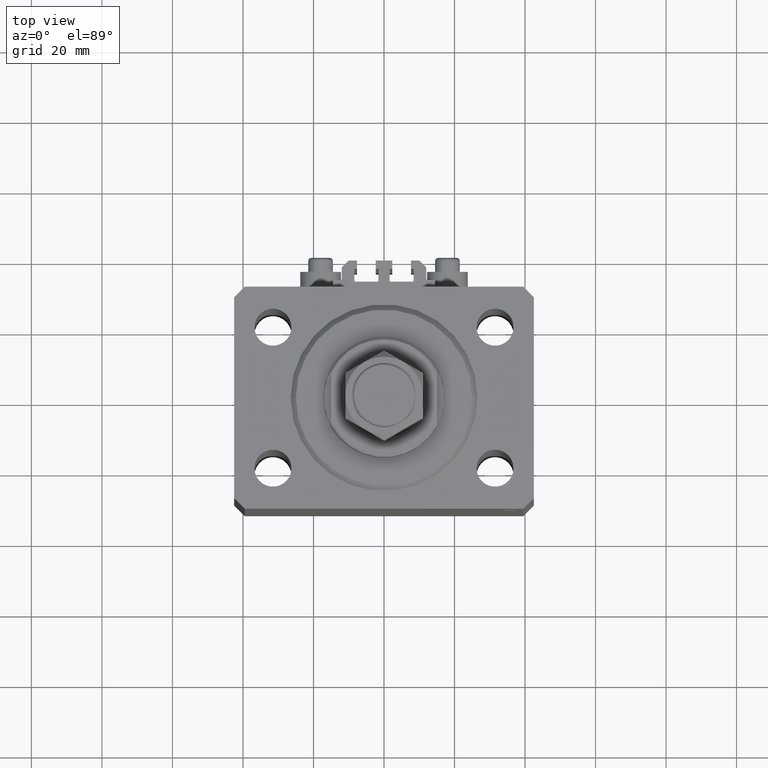
[diagram: clean part render]
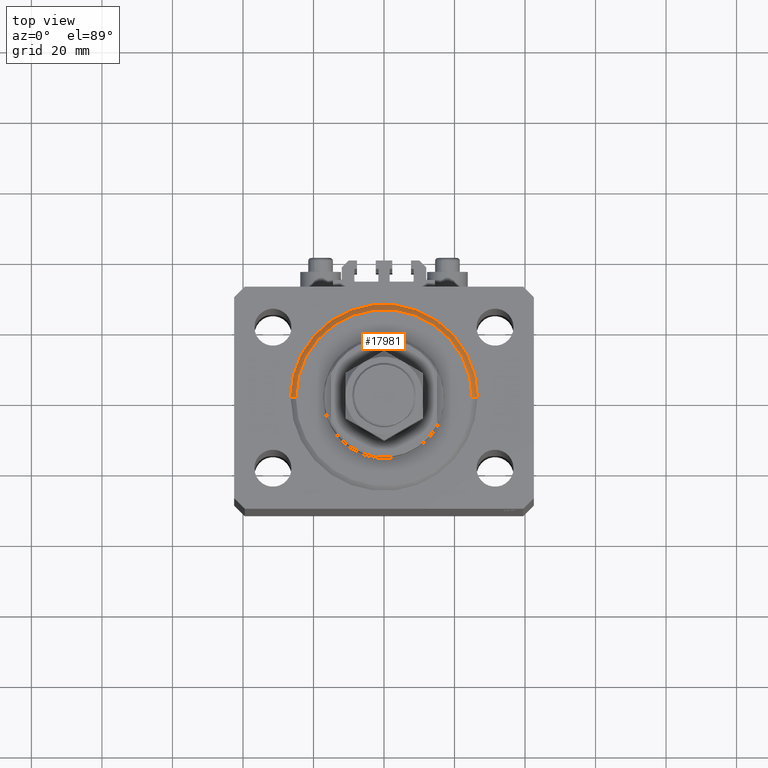
[diagram: same view with one face highlighted and labeled with its STEP entity id]
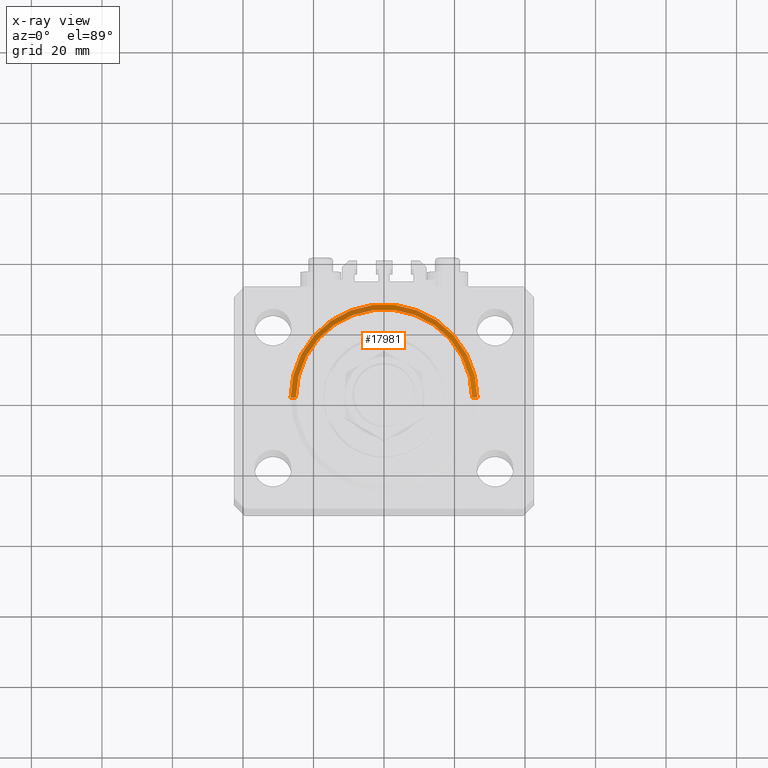
[diagram: x-ray of the same camera — body ghosted, the highlighted face saturated]
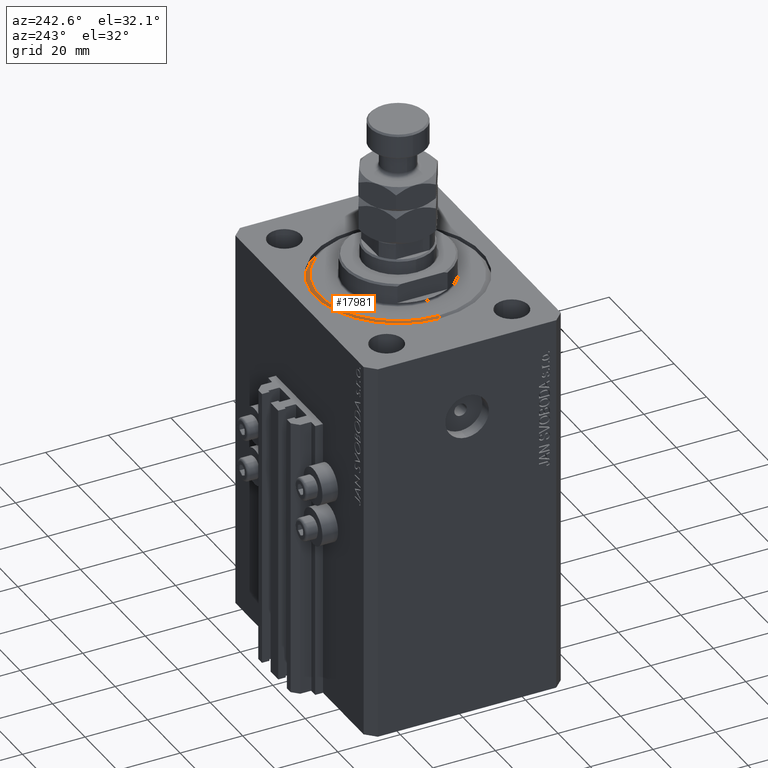
[diagram: same view with one face highlighted and labeled with its STEP entity id]
A machine part, top view. The second image highlights one B-rep face of the part: STEP entity #17981.
The next image is the same camera in x-ray: the body ghosted, the highlighted face saturated — about 0% of this face is hidden behind the body in this view.
A second angle (auxiliary view) of the same face is appended — the face is thin or edge-on in the first view.
In plain terms, the highlighted conical surface has half-angle 45 deg.
Its self-contained STEP definition (entity closure, byte-faithful):
#779 = CARTESIAN_POINT ( 'NONE',  ( -26.50000000000000355, 3.245314017740486554E-15, 1.500000000000018652 ) ) ;
#2025 = LINE ( 'NONE', #43405, #22865 ) ;
#2529 = EDGE_CURVE ( 'NONE', #45992, #48067, #36577, .T. ) ;
#5304 = VERTEX_POINT ( 'NONE', #16813 ) ;
#5512 = VERTEX_POINT ( 'NONE', #18758 ) ;
#5896 = CARTESIAN_POINT ( 'NONE',  ( 0.000000000000000000, 0.000000000000000000, 1.500000000000018652 ) ) ;
#6635 = DIRECTION ( 'NONE',  ( 1.000000000000000000, 0.000000000000000000, 0.000000000000000000 ) ) ;
#11686 = CARTESIAN_POINT ( 'NONE',  ( 26.50000000000000355, 3.245314017740486554E-15, 1.500000000000018652 ) ) ;
#13610 = ORIENTED_EDGE ( 'NONE', *, *, #2529, .F. ) ;
#15060 = ORIENTED_EDGE ( 'NONE', *, *, #48622, .F. ) ;
#15214 = AXIS2_PLACEMENT_3D ( 'NONE', #45427, #33785, #30077 ) ;
#16813 = CARTESIAN_POINT ( 'NONE',  ( -24.99999999999998224, 3.153465507804433615E-15, 0.000000000000000000 ) ) ;
#17135 = CARTESIAN_POINT ( 'NONE',  ( -26.50000000000000355, 0.000000000000000000, 1.500000000000018652 ) ) ;
#17137 = DIRECTION ( 'NONE',  ( 0.7071067811865483499, 0.000000000000000000, 0.7071067811865466846 ) ) ;
#17981 = ADVANCED_FACE ( 'NONE', ( #47265 ), #21152, .T. ) ;
#18758 = CARTESIAN_POINT ( 'NONE',  ( 24.99999999999998224, 0.000000000000000000, 0.000000000000000000 ) ) ;
#19854 = DIRECTION ( 'NONE',  ( -0.7071067811865483499, 8.659560562354942719E-17, 0.7071067811865466846 ) ) ;
#21152 = CONICAL_SURFACE ( 'NONE', #32997, 26.50000000000000355, 0.7853981633974495002 ) ;
#22865 = VECTOR ( 'NONE', #17137, 1000.000000000000000 ) ;
#24052 = LINE ( 'NONE', #779, #37221 ) ;
#25478 = DIRECTION ( 'NONE',  ( 1.000000000000000000, 0.000000000000000000, 0.000000000000000000 ) ) ;
#25726 = EDGE_CURVE ( 'NONE', #5512, #45992, #2025, .T. ) ;
#26981 = AXIS2_PLACEMENT_3D ( 'NONE', #29189, #44305, #25478 ) ;
#29189 = CARTESIAN_POINT ( 'NONE',  ( 0.000000000000000000, 0.000000000000000000, 0.000000000000000000 ) ) ;
#30077 = DIRECTION ( 'NONE',  ( 1.000000000000000000, 0.000000000000000000, 0.000000000000000000 ) ) ;
#30655 = ORIENTED_EDGE ( 'NONE', *, *, #25726, .F. ) ;
#32997 = AXIS2_PLACEMENT_3D ( 'NONE', #5896, #33622, #6635 ) ;
#33622 = DIRECTION ( 'NONE',  ( -0.000000000000000000, -0.000000000000000000, 1.000000000000000000 ) ) ;
#33785 = DIRECTION ( 'NONE',  ( -0.000000000000000000, -0.000000000000000000, 1.000000000000000000 ) ) ;
#34420 = ORIENTED_EDGE ( 'NONE', *, *, #46114, .T. ) ;
#35671 = EDGE_LOOP ( 'NONE', ( #15060, #34420, #13610, #30655 ) ) ;
#36577 = CIRCLE ( 'NONE', #15214, 26.50000000000000355 ) ;
#37221 = VECTOR ( 'NONE', #19854, 1000.000000000000000 ) ;
#43405 = CARTESIAN_POINT ( 'NONE',  ( 26.50000000000000355, 0.000000000000000000, 1.500000000000018652 ) ) ;
#44305 = DIRECTION ( 'NONE',  ( -0.000000000000000000, -0.000000000000000000, -1.000000000000000000 ) ) ;
#45427 = CARTESIAN_POINT ( 'NONE',  ( 0.000000000000000000, 0.000000000000000000, 1.500000000000018652 ) ) ;
#45992 = VERTEX_POINT ( 'NONE', #11686 ) ;
#46114 = EDGE_CURVE ( 'NONE', #5304, #48067, #24052, .T. ) ;
#47265 = FACE_OUTER_BOUND ( 'NONE', #35671, .T. ) ;
#48067 = VERTEX_POINT ( 'NONE', #17135 ) ;
#48355 = CIRCLE ( 'NONE', #26981, 24.99999999999998224 ) ;
#48622 = EDGE_CURVE ( 'NONE', #5304, #5512, #48355, .T. ) ;